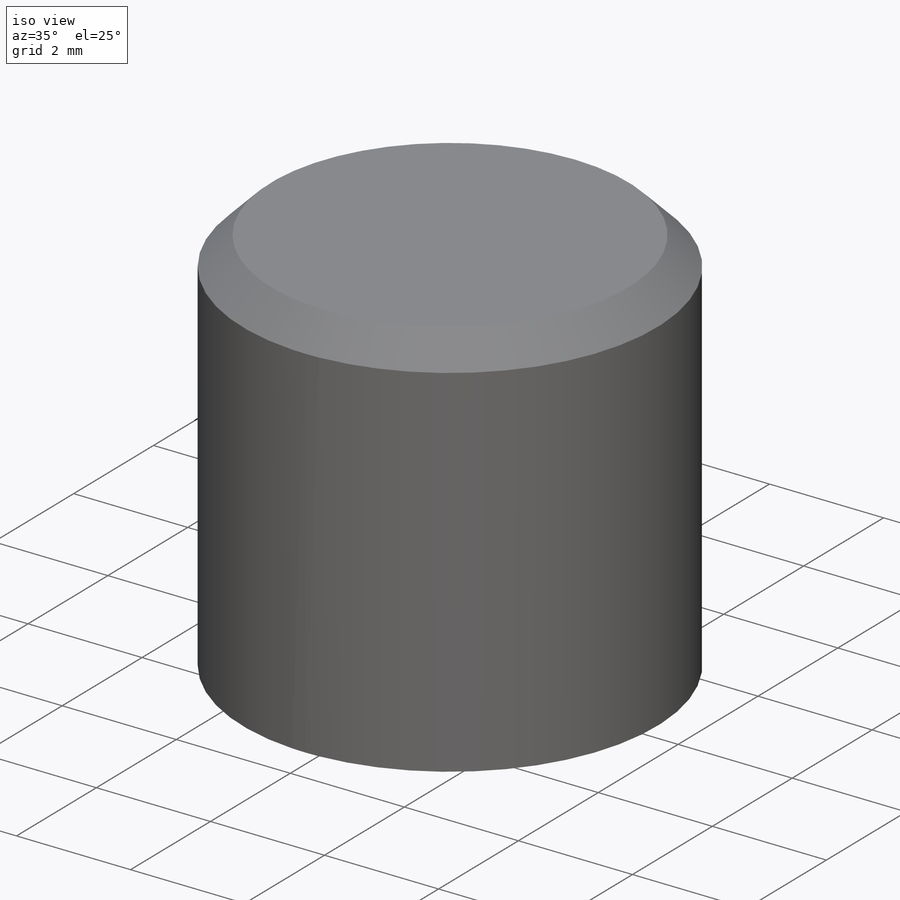
[diagram: iso view]
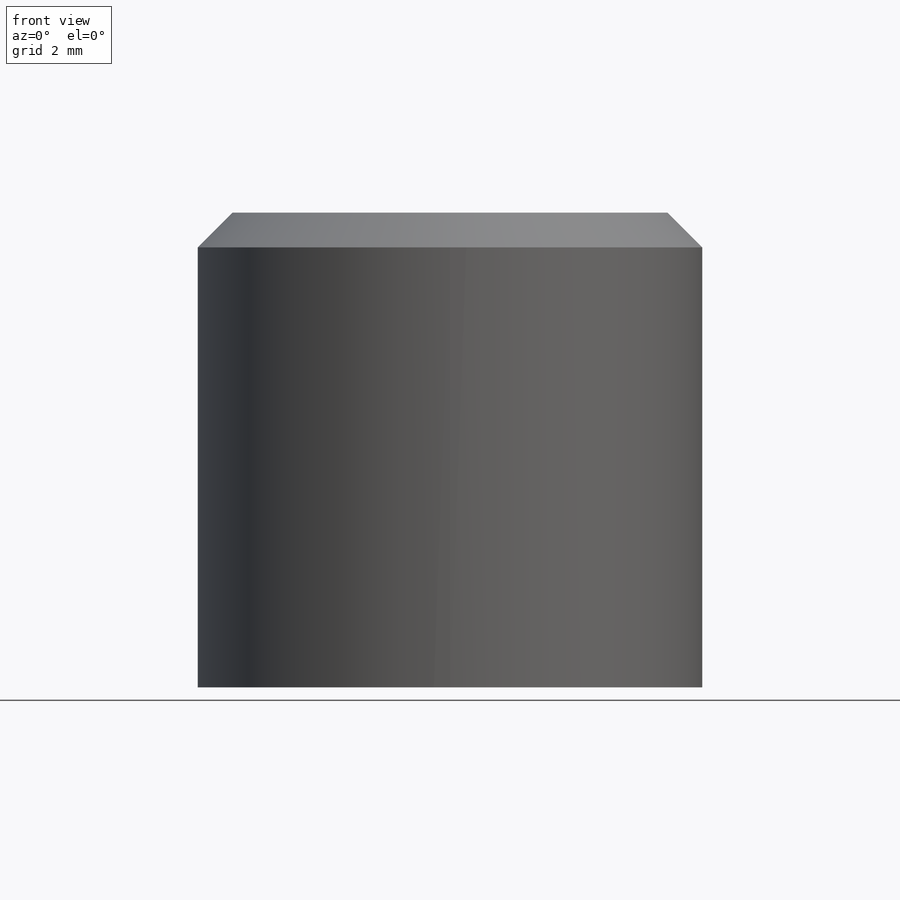
[diagram: front view]
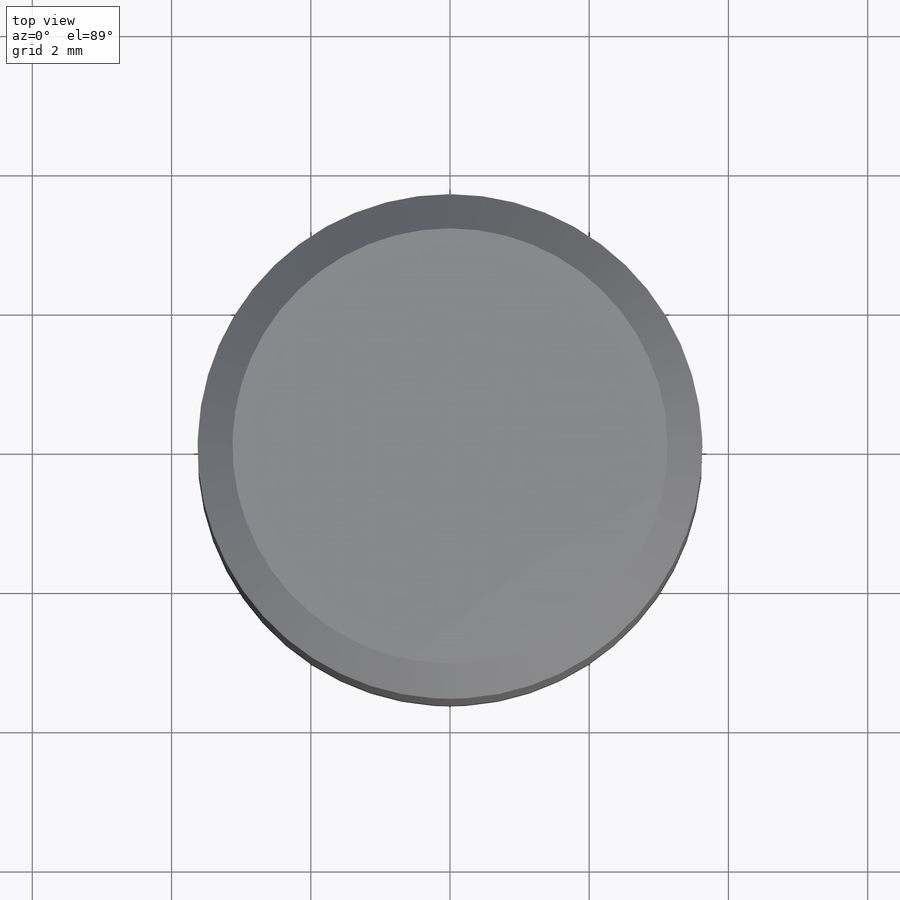
[diagram: top view]
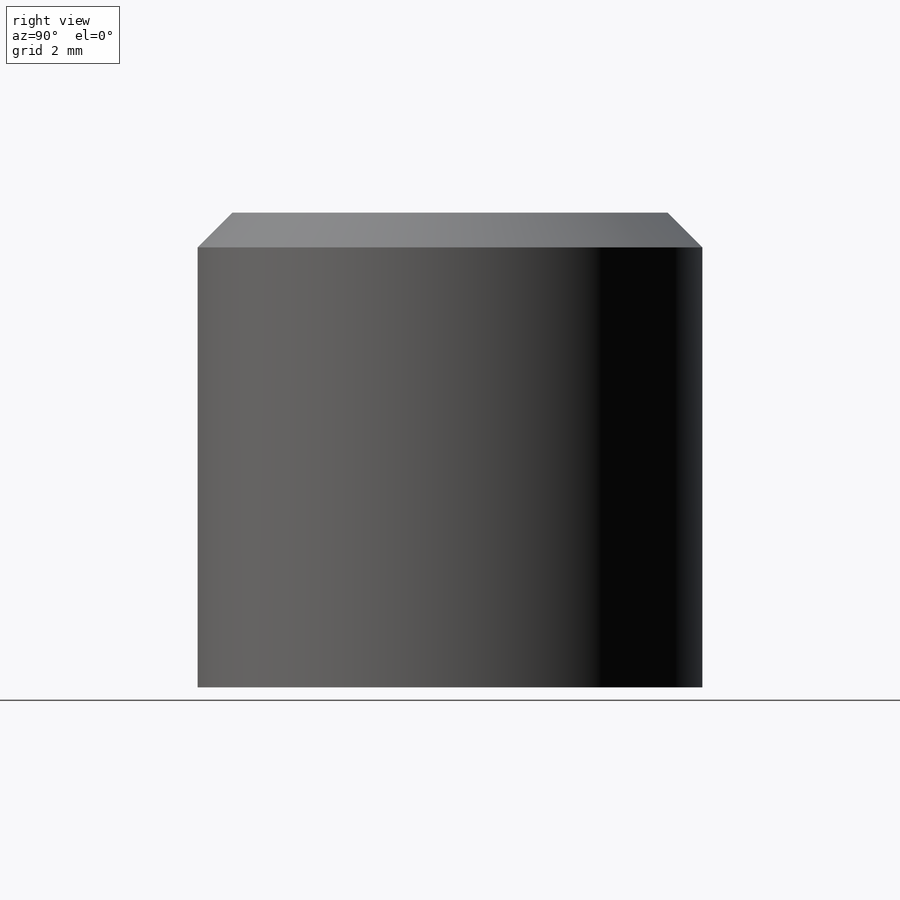
[diagram: right view]
SOLIDWORKS PART (.sldprt)
format: sldprt  version: not decoded by parser v0  size: 141,824 bytes
history: native  units: mm
features: sketch x2, material x1, extrude x1, chamfer x1, cut_extrude x1 (+11 scaffold rows collapsed)
feature tree (17):
  scaffold x11  (default folders/planes/origin — collapsed)
  material  "Material <not specified>"
  sketch  "Sketch1"  dims[D1=7.25mm]
  extrude  "Boss-Extrude1"  Depth=6.82mm
  chamfer  "Chamfer1"  Distance=0.5mm Angle=45deg
  sketch  "Sketch2"  dims[D1=3.2mm D2=3.2mm]
  cut_extrude  "Cut-Extrude1"  Depth=3.89mm
decode coverage: 5 of 5 modeling features carry decoded parameters
note: suppression state not decoded; provenance and decode notes live in map.json
